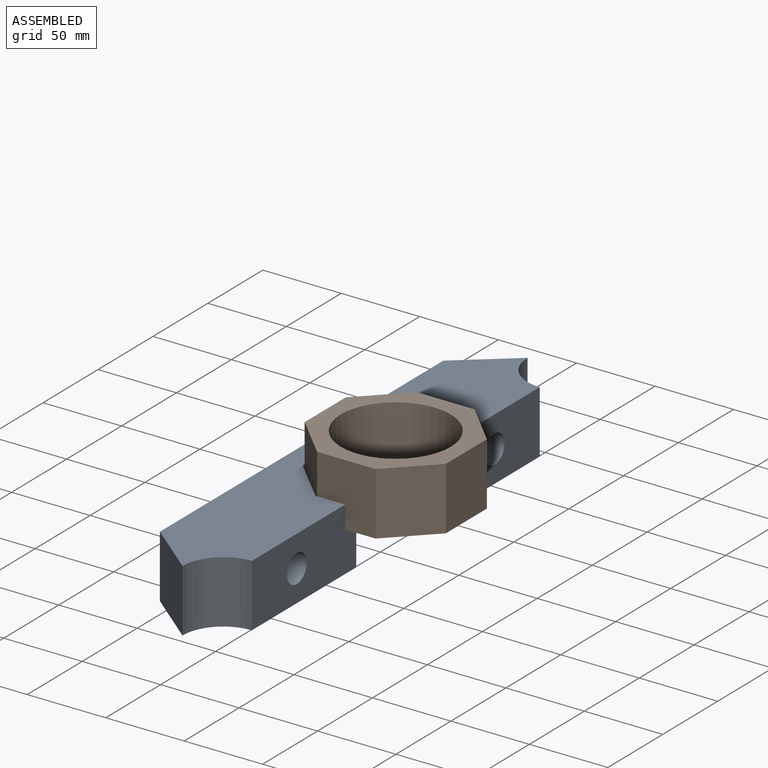
[diagram: assembled view]
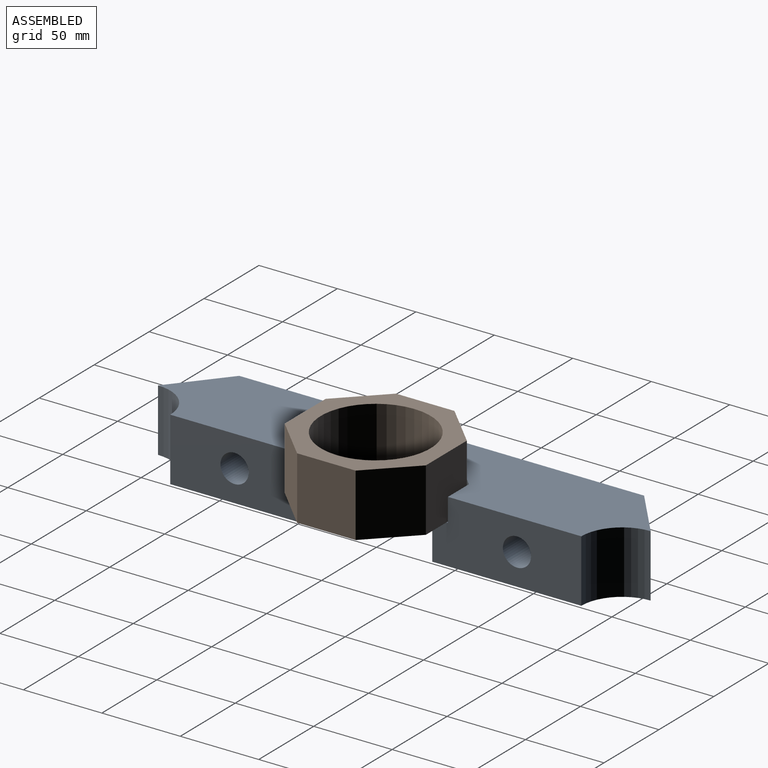
[diagram: assembled view, second angle]
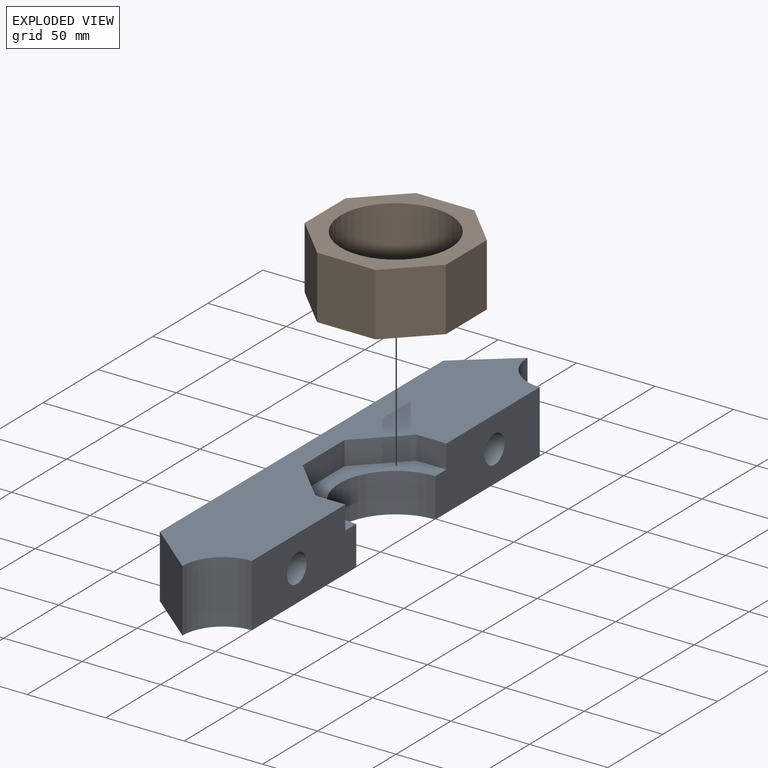
[diagram: exploded view]
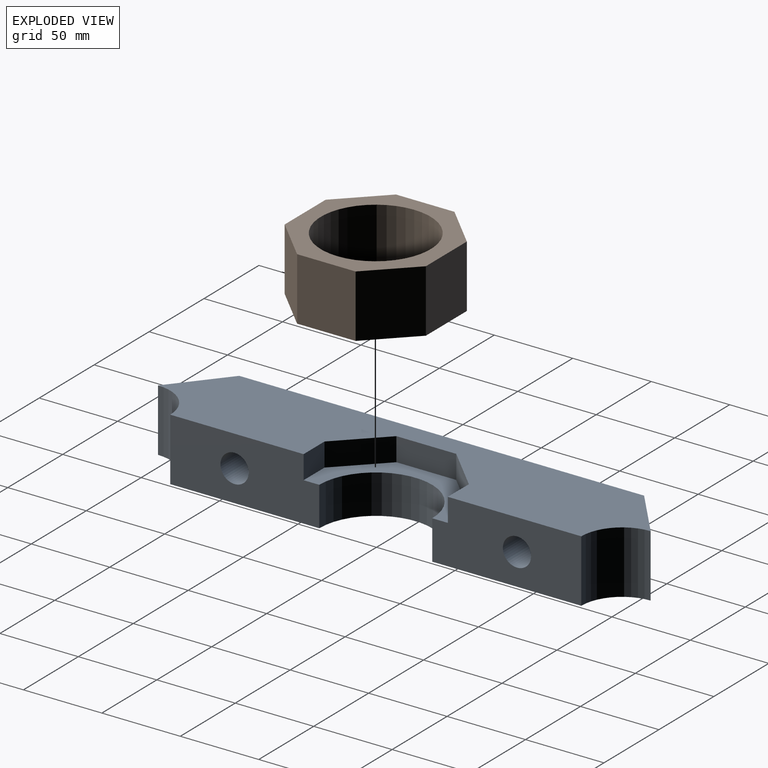
[diagram: exploded view, second angle]
ASSEMBLY  parts=2 mates=2
PART A: 18 faces, bbox 60x314x40 mm
  f0: plane 314x60mm, normal (0,0,1), area 13320.2mm2, adj f1,f3,f4,f5,f6,f7,f8,f9
  f1: plane 258x40mm, normal (-1,0,0), area 9811.1mm2, adj f0,f2,f5,f6,f16,f17
  f2: plane 314x60mm, normal (0,0,-1), area 14790.4mm2, adj f1,f3,f4,f5,f6,f13,f14,f15
  f3: cylinder r=26mm len=40mm, axis (0,0,1), area 1633.6mm2, adj f0,f2,f5,f15
  f4: cylinder r=26mm len=40mm, axis (0,0,1), area 1633.6mm2, adj f0,f2,f6,f14
  f5: plane 40x34mm, normal (-0.64,-0.77,0), area 1761.8mm2, adj f0,f1,f2,f3
  f6: plane 40x34mm, normal (-0.64,0.77,0), area 1761.8mm2, adj f0,f1,f2,f4
  f7: plane 38.11x15mm, normal (1,0,0), area 571.6mm2, adj f0,f8,f11,f12
  f8: plane 26.95x26.95mm, normal (0.71,0.71,0), area 571.6mm2, adj f0,f7,f9,f12
  f9: plane 19.05x15mm, normal (0,1,0), area 285.8mm2, adj f0,f8,f12,f15
  f10: plane 19.05x15mm, normal (0,-1,0), area 285.8mm2, adj f0,f11,f12,f14
  f11: plane 26.95x26.95mm, normal (0.71,-0.71,0), area 571.6mm2, adj f0,f7,f10,f12
  f12: plane 92x46mm, normal (0,0,1), area 1470.2mm2, adj f7,f8,f9,f10,f11,f13,f14,f15
  f13: cylinder r=36mm len=72mm, axis (0,0,1), area 2827.4mm2, adj f2,f12,f14,f15
  f14: plane 95x40mm, normal (1,0,0), area 3395.5mm2, adj f0,f2,f4,f10,f12,f13,f17
  f15: plane 95x40mm, normal (1,0,0), area 3395.5mm2, adj f0,f2,f3,f9,f12,f13,f16
  f16: cylinder r=9mm len=60mm, axis (-1,0,0), area 3392.9mm2, adj f1,f15
  f17: cylinder r=9mm len=60mm, axis (-1,0,0), area 3392.9mm2, adj f1,f14
PART B: 11 faces, bbox 90x90x40 mm
  f0: plane 40x37.28mm, normal (-1,0,0), area 1491.2mm2, adj f1,f7,f9,f10
  f1: plane 40x26.36mm, normal (-0.71,-0.71,0), area 1491.2mm2, adj f0,f2,f9,f10
  f2: plane 40x37.28mm, normal (0,-1,0), area 1491.2mm2, adj f1,f3,f9,f10
  f3: plane 40x26.36mm, normal (0.71,-0.71,0), area 1491.2mm2, adj f2,f4,f9,f10
  f4: plane 40x37.28mm, normal (1,0,0), area 1491.2mm2, adj f3,f5,f9,f10
  f5: plane 40x26.36mm, normal (0.71,0.71,0), area 1491.2mm2, adj f4,f6,f9,f10
  f6: plane 40x37.28mm, normal (0,1,0), area 1491.2mm2, adj f5,f7,f9,f10
  f7: plane 40x26.36mm, normal (-0.71,0.71,0), area 1491.2mm2, adj f0,f6,f9,f10
  f8: cylinder r=35mm len=70mm, axis (0,0,-1), area 8796.5mm2, adj f9,f10
  f9: plane 90x90mm, normal (0,0,1), area 2861.8mm2, adj f0,f1,f2,f3,f4,f5,f6,f7
  f10: plane 90x90mm, normal (0,0,-1), area 2861.8mm2, adj f0,f1,f2,f3,f4,f5,f6,f7
PLACE A t=(206.81,-95.69,10.7)mm
PLACE B t=(206.53,-95.32,35.7)mm
MATE planar B.f10 <-> A.f12  axis (0,0,-1) through (188.17,-140.69,35.7)mm
MATE cylindrical B.f8 <-> A.f13  axis (0,0,1) through (206.81,-95.69,75.7)mm
